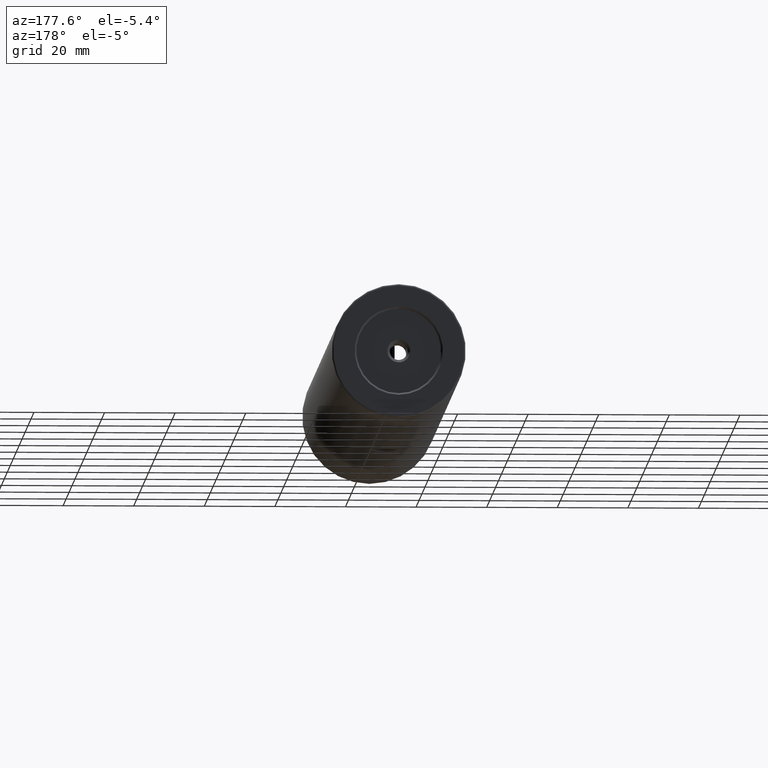
[diagram: clean part render]
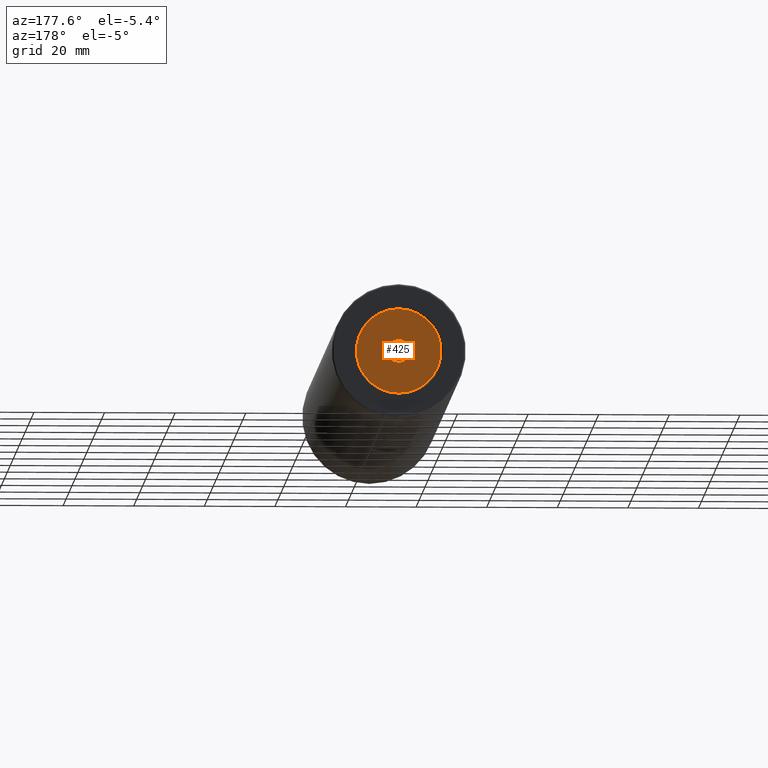
[diagram: same view with one face highlighted and labeled with its STEP entity id]
A machine part, auxiliary view. The second image highlights one B-rep face of the part: STEP entity #425.
In plain terms, the highlighted planar face has unit normal (0, 1, 0).
Its self-contained STEP definition (entity closure, byte-faithful):
#25 = DIRECTION ( 'NONE',  ( 0.0000000000000000000, 0.0000000000000000000, 1.000000000000000000 ) ) ;
#50 = PLANE ( 'NONE',  #341 ) ;
#55 = VERTEX_POINT ( 'NONE', #584 ) ;
#98 = CARTESIAN_POINT ( 'NONE',  ( -85.22679983354142053, 95.23866000832572354, 400.0000000000000000 ) ) ;
#128 = DIRECTION ( 'NONE',  ( 0.0000000000000000000, -0.0000000000000000000, 1.000000000000000000 ) ) ;
#129 = ORIENTED_EDGE ( 'NONE', *, *, #546, .T. ) ;
#153 = DIRECTION ( 'NONE',  ( 0.0000000000000000000, 1.000000000000000000, 0.0000000000000000000 ) ) ;
#155 = EDGE_CURVE ( 'NONE', #442, #55, #403, .T. ) ;
#218 = FACE_BOUND ( 'NONE', #846, .T. ) ;
#235 = VERTEX_POINT ( 'NONE', #594 ) ;
#322 = CARTESIAN_POINT ( 'NONE',  ( -85.22679983354142053, 95.23866000832572354, 403.2500000000000000 ) ) ;
#341 = AXIS2_PLACEMENT_3D ( 'NONE', #698, #453, #128 ) ;
#357 = AXIS2_PLACEMENT_3D ( 'NONE', #548, #153, #857 ) ;
#375 = FACE_OUTER_BOUND ( 'NONE', #550, .T. ) ;
#403 = CIRCLE ( 'NONE', #677, 3.249999999999975131 ) ;
#408 = CIRCLE ( 'NONE', #357, 12.00000000000001066 ) ;
#409 = DIRECTION ( 'NONE',  ( -0.0000000000000000000, -1.000000000000000000, -0.0000000000000000000 ) ) ;
#413 = CARTESIAN_POINT ( 'NONE',  ( -85.22679983354142053, 95.23866000832572354, 388.0000000000000000 ) ) ;
#415 = EDGE_CURVE ( 'NONE', #55, #442, #923, .T. ) ;
#425 = ADVANCED_FACE ( 'NONE', ( #218, #375 ), #50, .T. ) ;
#442 = VERTEX_POINT ( 'NONE', #322 ) ;
#453 = DIRECTION ( 'NONE',  ( 0.0000000000000000000, 1.000000000000000000, 0.0000000000000000000 ) ) ;
#479 = ORIENTED_EDGE ( 'NONE', *, *, #622, .T. ) ;
#517 = ORIENTED_EDGE ( 'NONE', *, *, #155, .T. ) ;
#530 = ORIENTED_EDGE ( 'NONE', *, *, #415, .T. ) ;
#546 = EDGE_CURVE ( 'NONE', #235, #588, #408, .T. ) ;
#548 = CARTESIAN_POINT ( 'NONE',  ( -85.22679983354142053, 95.23866000832572354, 400.0000000000000000 ) ) ;
#550 = EDGE_LOOP ( 'NONE', ( #129, #479 ) ) ;
#567 = CARTESIAN_POINT ( 'NONE',  ( -85.22679983354142053, 95.23866000832572354, 400.0000000000000000 ) ) ;
#584 = CARTESIAN_POINT ( 'NONE',  ( -85.22679983354142053, 95.23866000832572354, 396.7500000000000568 ) ) ;
#588 = VERTEX_POINT ( 'NONE', #413 ) ;
#594 = CARTESIAN_POINT ( 'NONE',  ( -85.22679983354142053, 95.23866000832572354, 412.0000000000000568 ) ) ;
#614 = DIRECTION ( 'NONE',  ( -0.0000000000000000000, -1.000000000000000000, -0.0000000000000000000 ) ) ;
#622 = EDGE_CURVE ( 'NONE', #588, #235, #948, .T. ) ;
#642 = AXIS2_PLACEMENT_3D ( 'NONE', #567, #887, #875 ) ;
#677 = AXIS2_PLACEMENT_3D ( 'NONE', #98, #409, #25 ) ;
#698 = CARTESIAN_POINT ( 'NONE',  ( -85.22679983354142053, 95.23866000832572354, 400.0000000000000000 ) ) ;
#832 = CARTESIAN_POINT ( 'NONE',  ( -85.22679983354142053, 95.23866000832572354, 400.0000000000000000 ) ) ;
#843 = DIRECTION ( 'NONE',  ( 0.0000000000000000000, 0.0000000000000000000, 1.000000000000000000 ) ) ;
#846 = EDGE_LOOP ( 'NONE', ( #517, #530 ) ) ;
#857 = DIRECTION ( 'NONE',  ( 0.0000000000000000000, 0.0000000000000000000, 1.000000000000000000 ) ) ;
#875 = DIRECTION ( 'NONE',  ( 0.0000000000000000000, 0.0000000000000000000, 1.000000000000000000 ) ) ;
#887 = DIRECTION ( 'NONE',  ( 0.0000000000000000000, 1.000000000000000000, 0.0000000000000000000 ) ) ;
#923 = CIRCLE ( 'NONE', #1002, 3.249999999999975131 ) ;
#948 = CIRCLE ( 'NONE', #642, 12.00000000000001066 ) ;
#1002 = AXIS2_PLACEMENT_3D ( 'NONE', #832, #614, #843 ) ;